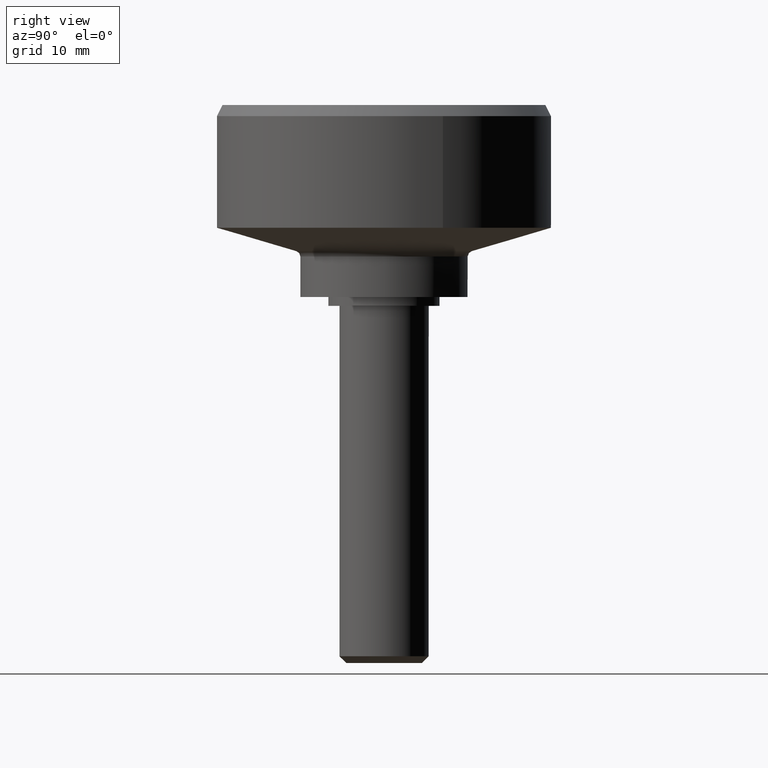
[diagram: clean part render]
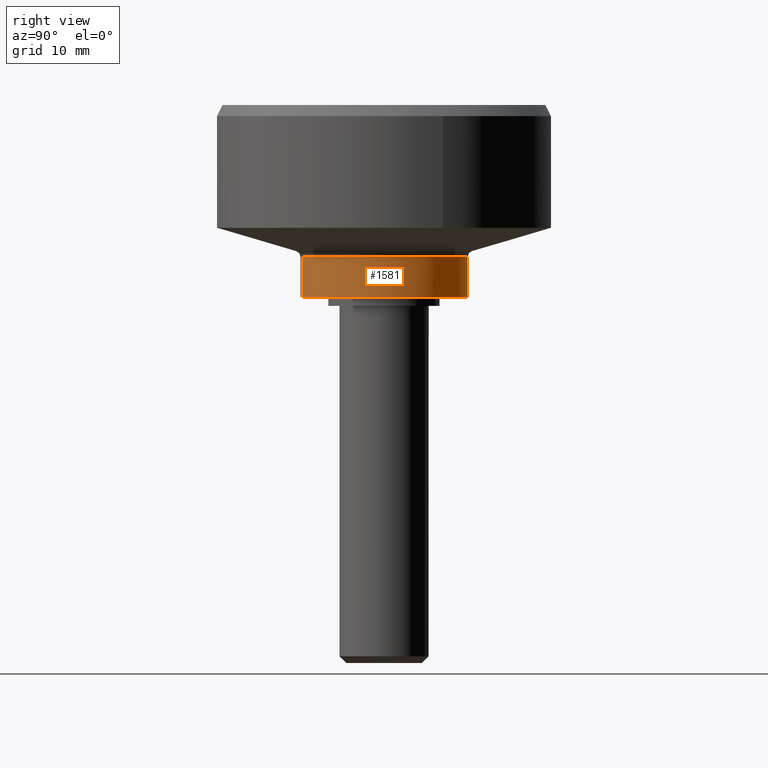
[diagram: same view with one face highlighted and labeled with its STEP entity id]
A machine part, right view. The second image highlights one B-rep face of the part: STEP entity #1581.
In plain terms, the highlighted face is a freeform B-spline surface patch.
Its self-contained STEP definition (entity closure, byte-faithful):
#1415=CARTESIAN_POINT('',(-3.382614201223764,-6.693871911358874,4.516237875136694));
#1416=CARTESIAN_POINT('',(-6.553310492871449,-5.091623997756693,4.516237875136693));
#1417=CARTESIAN_POINT('',(-7.322220053399498,-1.623297104535771,4.516237875136693));
#1418=CARTESIAN_POINT('',(-8.945517157935269,5.698922948863728,4.516237875136693));
#1419=CARTESIAN_POINT('',(-1.623297104535771,7.322220053399498,4.516237875136693));
#1420=CARTESIAN_POINT('',(5.698922948863728,8.945517157935269,4.516237875136693));
#1421=CARTESIAN_POINT('',(7.322220053399498,1.623297104535771,4.516237875136693));
#1422=CARTESIAN_POINT('',(8.945517157935269,-5.698922948863728,4.516237875136693));
#1423=CARTESIAN_POINT('',(1.623297104535771,-7.322220053399498,4.516237875136693));
#1424=CARTESIAN_POINT('',(-3.382614201223764,-6.693871911358874,0.707097128121573));
#1425=CARTESIAN_POINT('',(-6.553310492871449,-5.091623997756693,0.707097128121573));
#1426=CARTESIAN_POINT('',(-7.322220053399498,-1.623297104535771,0.707097128121573));
#1427=CARTESIAN_POINT('',(-8.945517157935269,5.698922948863728,0.707097128121573));
#1428=CARTESIAN_POINT('',(-1.623297104535771,7.322220053399498,0.707097128121573));
#1429=CARTESIAN_POINT('',(5.698922948863728,8.945517157935269,0.707097128121573));
#1430=CARTESIAN_POINT('',(7.322220053399498,1.623297104535771,0.707097128121573));
#1431=CARTESIAN_POINT('',(8.945517157935269,-5.698922948863728,0.707097128121573));
#1432=CARTESIAN_POINT('',(1.623297104535771,-7.322220053399498,0.707097128121573));
#1440=(BOUNDED_SURFACE()B_SPLINE_SURFACE(2,1,((#1415,#1424),(#1416,#1425),(#1417,#1426),(#1418,#1427),(#1419,#1428),(#1420,#1429),(#1421,#1430),(#1422,#1431),(#1423,#1432)),.UNSPECIFIED.,.F.,.F.,.U.)B_SPLINE_SURFACE_WITH_KNOTS((3,2,2,2,3),(2,2),(0.0,6.958787847867995,19.385194719060841,31.811601590253691,44.238008461446533),(0.0,3.809140747015122),.UNSPECIFIED.)GEOMETRIC_REPRESENTATION_ITEM()RATIONAL_B_SPLINE_SURFACE(((0.855662221768731,0.855662221768731),(0.835979797464467,0.835979797464467),(1.0,1.0),(0.707106781186548,0.707106781186548),(1.0,1.0),(0.707106781186548,0.707106781186548),(1.0,1.0),(0.707106781186548,0.707106781186548),(1.0,1.0)))REPRESENTATION_ITEM('')SURFACE());
#1441=CARTESIAN_POINT('',(-3.382609829655960,-6.693874120439229,4.425598000020203));
#1442=VERTEX_POINT('',#1441);
#1443=CARTESIAN_POINT('',(-7.161484085598104,-2.227811861833280,4.425598000133359));
#1444=VERTEX_POINT('',#1443);
#1445=CARTESIAN_POINT('',(-3.382609829655960,-6.693874120439229,4.425598000020202));
#1446=CARTESIAN_POINT('',(-6.217870859520609,-5.261134027527486,4.425598000056571));
#1447=CARTESIAN_POINT('',(-7.161484085598105,-2.227811861833280,4.425598000133359));
#1455=(BOUNDED_CURVE()B_SPLINE_CURVE(2,(#1445,#1446,#1447),.UNSPECIFIED.,.F.,.U.)B_SPLINE_CURVE_WITH_KNOTS((3,3),(0.826686976935076,0.949458637681019),.UNSPECIFIED.)CURVE()GEOMETRIC_REPRESENTATION_ITEM()RATIONAL_B_SPLINE_CURVE((0.875430388314993,0.819837192691085,0.905515822341894))REPRESENTATION_ITEM(''));
#1456=EDGE_CURVE('',#1442,#1444,#1455,.T.);
#1457=ORIENTED_EDGE('',*,*,#1456,.T.);
#1458=CARTESIAN_POINT('',(-7.500000000000000,0.0,4.425597999999895));
#1459=VERTEX_POINT('',#1458);
#1460=CARTESIAN_POINT('',(-7.161484085598104,-2.227811861833280,4.425598000133359));
#1461=CARTESIAN_POINT('',(-7.500000000000000,-1.139624670070455,4.425597999999895));
#1462=CARTESIAN_POINT('',(-7.500000000000000,0.0,4.425597999999895));
#1470=(BOUNDED_CURVE()B_SPLINE_CURVE(2,(#1460,#1461,#1462),.UNSPECIFIED.,.F.,.U.)B_SPLINE_CURVE_WITH_KNOTS((3,3),(0.949458637681020,1.0),.UNSPECIFIED.)CURVE()GEOMETRIC_REPRESENTATION_ITEM()RATIONAL_B_SPLINE_CURVE((0.905515822341896,0.940787110828708,1.0))REPRESENTATION_ITEM(''));
#1471=EDGE_CURVE('',#1444,#1459,#1470,.T.);
#1472=ORIENTED_EDGE('',*,*,#1471,.T.);
#1473=CARTESIAN_POINT('',(-3.039806692163200,6.856352913486863,4.425598000128345));
#1474=VERTEX_POINT('',#1473);
#1475=CARTESIAN_POINT('',(-7.500000000000000,0.0,4.425597999999895));
#1476=CARTESIAN_POINT('',(-7.500000000000000,4.878898480116419,4.425597999999896));
#1477=CARTESIAN_POINT('',(-3.039806692163200,6.856352913486863,4.425598000128344));
#1485=(BOUNDED_CURVE()B_SPLINE_CURVE(2,(#1475,#1476,#1477),.UNSPECIFIED.,.F.,.U.)B_SPLINE_CURVE_WITH_KNOTS((3,3),(0.0,0.181175101877555),.UNSPECIFIED.)CURVE()GEOMETRIC_REPRESENTATION_ITEM()RATIONAL_B_SPLINE_CURVE((1.0,0.787740164968911,0.883129907827986))REPRESENTATION_ITEM(''));
#1486=EDGE_CURVE('',#1459,#1474,#1485,.T.);
#1487=ORIENTED_EDGE('',*,*,#1486,.T.);
#1488=CARTESIAN_POINT('',(7.500000000000000,0.0,4.425597999999895));
#1489=VERTEX_POINT('',#1488);
#1490=CARTESIAN_POINT('',(-3.039806692163200,6.856352913486863,4.425598000128344));
#1491=CARTESIAN_POINT('',(-1.588046095595895,7.500000000000001,4.425597999999895));
#1492=CARTESIAN_POINT('',(0.0,7.500000000000000,4.425597999999895));
#1493=CARTESIAN_POINT('',(7.500000000000000,7.500000000000000,4.425597999999895));
#1494=CARTESIAN_POINT('',(7.500000000000000,0.0,4.425597999999895));
#1502=(BOUNDED_CURVE()B_SPLINE_CURVE(2,(#1490,#1491,#1492,#1493,#1494),.UNSPECIFIED.,.F.,.U.)B_SPLINE_CURVE_WITH_KNOTS((3,2,3),(0.181175101877555,0.250000000000000,0.500000000000000),.UNSPECIFIED.)CURVE()GEOMETRIC_REPRESENTATION_ITEM()RATIONAL_B_SPLINE_CURVE((0.883129907827986,0.919366616217636,1.0,0.707106781186547,1.0))REPRESENTATION_ITEM(''));
#1503=EDGE_CURVE('',#1474,#1489,#1502,.T.);
#1504=ORIENTED_EDGE('',*,*,#1503,.T.);
#1505=CARTESIAN_POINT('',(1.623285749747485,-7.322222570676984,4.425597999999702));
#1506=VERTEX_POINT('',#1505);
#1507=CARTESIAN_POINT('',(7.500000000000000,0.0,4.425597999999895));
#1508=CARTESIAN_POINT('',(7.500000000000000,-6.019395948619899,4.425597999999897));
#1509=CARTESIAN_POINT('',(1.623285749747485,-7.322222570676984,4.425597999999702));
#1517=(BOUNDED_CURVE()B_SPLINE_CURVE(2,(#1507,#1508,#1509),.UNSPECIFIED.,.F.,.U.)B_SPLINE_CURVE_WITH_KNOTS((3,3),(0.500000000000000,0.712960139195385),.UNSPECIFIED.)CURVE()GEOMETRIC_REPRESENTATION_ITEM()RATIONAL_B_SPLINE_CURVE((1.0,0.750501677408411,0.926068934881781))REPRESENTATION_ITEM(''));
#1518=EDGE_CURVE('',#1489,#1506,#1517,.T.);
#1519=ORIENTED_EDGE('',*,*,#1518,.T.);
#1520=CARTESIAN_POINT('',(1.623285886490788,-7.322222540362166,0.800002999999990));
#1521=VERTEX_POINT('',#1520);
#1522=CARTESIAN_POINT('',(1.623285749747485,-7.322222570676984,4.425597999999702));
#1523=CARTESIAN_POINT('',(1.623285886490788,-7.322222540362166,0.800002999999990));
#1524=QUASI_UNIFORM_CURVE('',1,(#1522,#1523),.UNSPECIFIED.,.F.,.U.);
#1525=EDGE_CURVE('',#1506,#1521,#1524,.T.);
#1526=ORIENTED_EDGE('',*,*,#1525,.T.);
#1527=CARTESIAN_POINT('',(7.500000000000000,0.0,0.800002999999990));
#1528=VERTEX_POINT('',#1527);
#1529=CARTESIAN_POINT('',(7.500000000000000,0.0,0.800002999999990));
#1530=CARTESIAN_POINT('',(7.499999999999999,-6.019395833477774,0.800002999999990));
#1531=CARTESIAN_POINT('',(1.623285886490788,-7.322222540362166,0.800002999999990));
#1539=(BOUNDED_CURVE()B_SPLINE_CURVE(2,(#1529,#1530,#1531),.UNSPECIFIED.,.F.,.U.)B_SPLINE_CURVE_WITH_KNOTS((3,3),(0.500000000000000,0.712960136138132),.UNSPECIFIED.)CURVE()GEOMETRIC_REPRESENTATION_ITEM()RATIONAL_B_SPLINE_CURVE((1.0,0.750501680990206,0.926068929840899))REPRESENTATION_ITEM(''));
#1540=EDGE_CURVE('',#1528,#1521,#1539,.T.);
#1541=ORIENTED_EDGE('',*,*,#1540,.F.);
#1542=CARTESIAN_POINT('',(-7.500000000000000,0.0,0.800002999999990));
#1543=VERTEX_POINT('',#1542);
#1544=CARTESIAN_POINT('',(-7.500000000000000,0.0,0.800002999999990));
#1545=CARTESIAN_POINT('',(-7.500000000000000,7.500000000000000,0.800002999999990));
#1546=CARTESIAN_POINT('',(0.0,7.500000000000000,0.800002999999990));
#1547=CARTESIAN_POINT('',(7.500000000000000,7.500000000000000,0.800002999999990));
#1548=CARTESIAN_POINT('',(7.500000000000000,0.0,0.800002999999990));
#1556=(BOUNDED_CURVE()B_SPLINE_CURVE(2,(#1544,#1545,#1546,#1547,#1548),.UNSPECIFIED.,.F.,.U.)B_SPLINE_CURVE_WITH_KNOTS((3,2,3),(0.0,0.250000000000000,0.500000000000000),.UNSPECIFIED.)CURVE()GEOMETRIC_REPRESENTATION_ITEM()RATIONAL_B_SPLINE_CURVE((1.0,0.707106781186547,1.0,0.707106781186547,1.0))REPRESENTATION_ITEM(''));
#1557=EDGE_CURVE('',#1543,#1528,#1556,.T.);
#1558=ORIENTED_EDGE('',*,*,#1557,.F.);
#1559=CARTESIAN_POINT('',(-3.382610984584499,-6.693873536821209,0.800002999999990));
#1560=VERTEX_POINT('',#1559);
#1561=CARTESIAN_POINT('',(-3.382610984584499,-6.693873536821210,0.800002999999990));
#1562=CARTESIAN_POINT('',(-7.500000000000001,-4.613235885880550,0.800002999999990));
#1563=CARTESIAN_POINT('',(-7.500000000000000,0.0,0.800002999999990));
#1571=(BOUNDED_CURVE()B_SPLINE_CURVE(2,(#1561,#1562,#1563),.UNSPECIFIED.,.F.,.U.)B_SPLINE_CURVE_WITH_KNOTS((3,3),(0.826687003635874,1.0),.UNSPECIFIED.)CURVE()GEOMETRIC_REPRESENTATION_ITEM()RATIONAL_B_SPLINE_CURVE((0.875430364133806,0.796951194530828,1.0))REPRESENTATION_ITEM(''));
#1572=EDGE_CURVE('',#1560,#1543,#1571,.T.);
#1573=ORIENTED_EDGE('',*,*,#1572,.F.);
#1574=CARTESIAN_POINT('',(-3.382609829655960,-6.693874120439229,4.425598000020203));
#1575=CARTESIAN_POINT('',(-3.382610984584499,-6.693873536821209,0.800002999999990));
#1576=QUASI_UNIFORM_CURVE('',1,(#1574,#1575),.UNSPECIFIED.,.F.,.U.);
#1577=EDGE_CURVE('',#1442,#1560,#1576,.T.);
#1578=ORIENTED_EDGE('',*,*,#1577,.F.);
#1579=EDGE_LOOP('',(#1457,#1472,#1487,#1504,#1519,#1526,#1541,#1558,#1573,#1578));
#1580=FACE_OUTER_BOUND('',#1579,.T.);
#1581=ADVANCED_FACE('',(#1580),#1440,.T.);